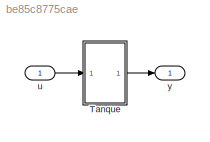
MODEL slx_be85c8775cae
KIND model
CONFIG AbsTol = auto
CONFIG EnableMultiTasking = off
CONFIG FixedStep = auto
CONFIG MaxStep = auto
CONFIG MinStep = auto
CONFIG RelTol = 1e-3
CONFIG SampleTimeConstraint = Unconstrained
CONFIG Solver = VariableStepAuto
CONFIG SolverName = VariableStepAuto
CONFIG StartTime = 0.0
CONFIG StopTime = 20
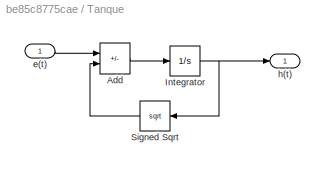
BLOCK [SubSystem] Tanque
  Ports = [1, 1]
  RequestExecContextInheritance = off
BLOCK [Sum] Tanque/Add
  IconShape = rectangular
  Inputs = +-
  Ports = [2, 1]
BLOCK [Integrator] Tanque/Integrator
  InitialCondition = h0
  Ports = [1, 1]
BLOCK [Sqrt] Tanque/Signed Sqrt
  NameLocation = top
  OutputSignalType = real
BLOCK [Inport] Tanque/e(t)
BLOCK [Outport] Tanque/h(t)
BLOCK [Inport] u
BLOCK [Outport] y
LINE Tanque/Add:1 -> Tanque/Integrator:1
NET Tanque/Integrator:1 -> Tanque/Signed Sqrt:1, Tanque/h(t):1
LINE Tanque/Signed Sqrt:1 -> Tanque/Add:2
LINE Tanque/e(t):1 -> Tanque/Add:1
LINE Tanque:1 -> y:1
LINE u:1 -> Tanque:1
note: NET lines group one-source signal fan-out (src -> all destinations, sorted); 1:1 wires keep LINE
